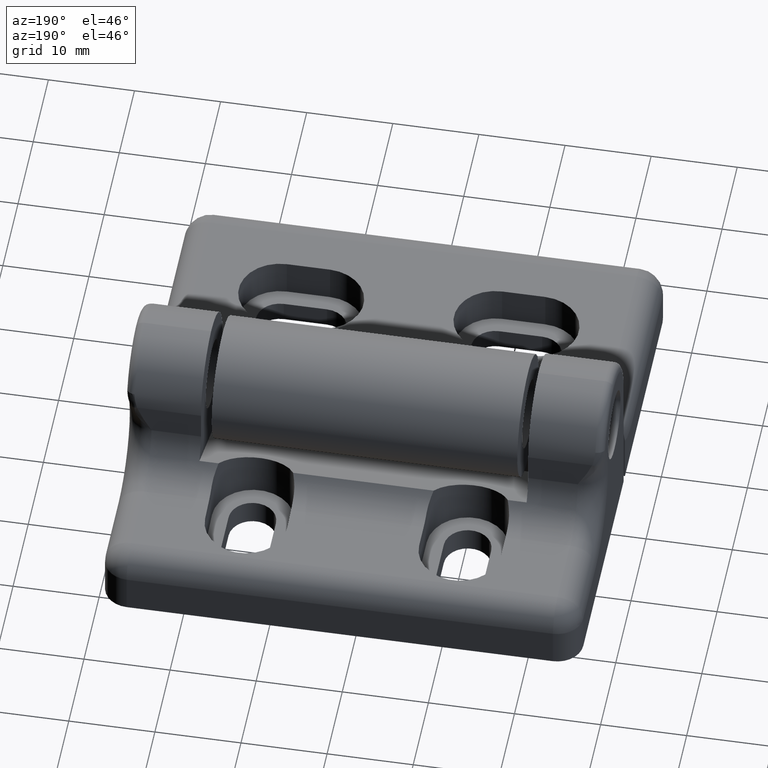
[diagram: clean part render]
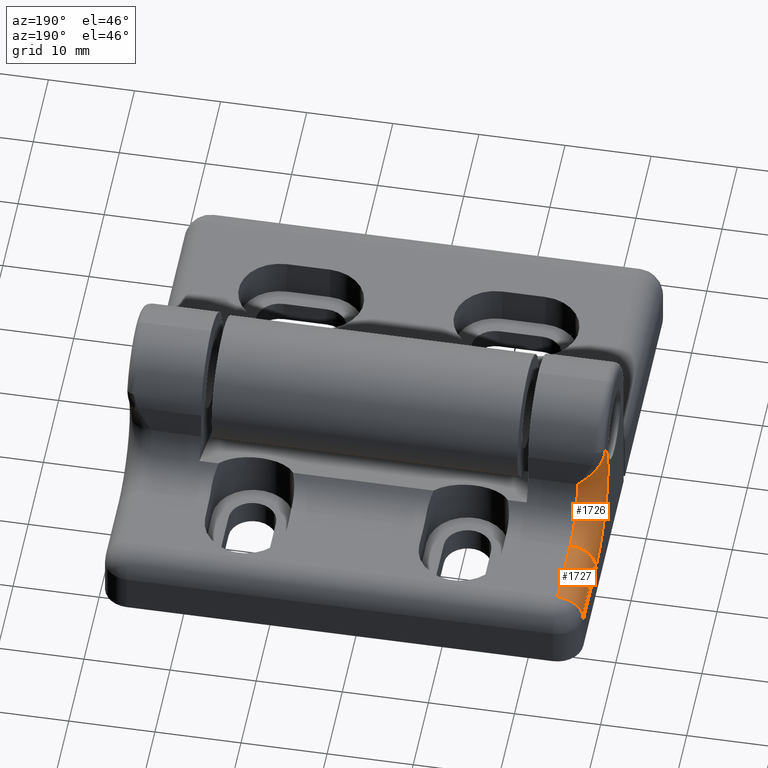
[diagram: same view with one multi-face feature highlighted, each face labeled with its STEP entity id]
A machine part, auxiliary view. The highlighted faces form ONE feature: a constant-radius fillet chain: 2 tangent blend faces with common blend radius 3 mm. The faces share edges in the B-rep.
Their STEP definitions:
[1] entity #1727 (Cylinder):
#154=FACE_OUTER_BOUND('',#261,.T.);
#261=EDGE_LOOP('',(#1304,#1305,#1306,#1307));
#386=LINE('',#2758,#528);
#405=LINE('',#2816,#547);
#528=VECTOR('',#2144,8.29999999999999);
#547=VECTOR('',#2199,8.29999999999999);
#673=CIRCLE('',#1876,3.);
#674=CIRCLE('',#1878,3.);
#759=VERTEX_POINT('',#2650);
#788=VERTEX_POINT('',#2756);
#808=VERTEX_POINT('',#2813);
#809=VERTEX_POINT('',#2815);
#967=EDGE_CURVE('',#788,#759,#386,.T.);
#998=EDGE_CURVE('',#808,#809,#405,.T.);
#1011=EDGE_CURVE('',#808,#759,#673,.T.);
#1012=EDGE_CURVE('',#809,#788,#674,.T.);
#1304=ORIENTED_EDGE('',*,*,#1011,.T.);
#1305=ORIENTED_EDGE('',*,*,#967,.F.);
#1306=ORIENTED_EDGE('',*,*,#1012,.F.);
#1307=ORIENTED_EDGE('',*,*,#998,.F.);
#1673=CYLINDRICAL_SURFACE('',#1877,3.);
#1727=ADVANCED_FACE('',(#154),#1673,.T.);
#1876=AXIS2_PLACEMENT_3D('',#2861,#2219,#2220);
#1877=AXIS2_PLACEMENT_3D('',#2862,#2221,#2222);
#1878=AXIS2_PLACEMENT_3D('',#2863,#2223,#2224);
#2144=DIRECTION('',(0.,-1.,0.));
#2199=DIRECTION('',(0.,1.,0.));
#2219=DIRECTION('center_axis',(0.,1.,0.));
#2220=DIRECTION('ref_axis',(0.,0.,1.));
#2221=DIRECTION('center_axis',(0.,1.,0.));
#2222=DIRECTION('ref_axis',(0.707106781186548,0.,-0.707106781186547));
#2223=DIRECTION('center_axis',(0.,1.,0.));
#2224=DIRECTION('ref_axis',(0.,0.,1.));
#2650=CARTESIAN_POINT('',(-14.75,34.1677756572818,7.99777293092992));
#2756=CARTESIAN_POINT('',(-14.75,42.4677756572818,7.99777293092992));
#2758=CARTESIAN_POINT('',(-14.75,42.4677756572818,7.99777293092992));
#2813=CARTESIAN_POINT('',(-17.75,34.1677756572818,4.99777293092991));
#2815=CARTESIAN_POINT('',(-17.75,42.4677756572818,4.99777293092992));
#2816=CARTESIAN_POINT('',(-17.75,34.1677756572818,4.99777293092992));
#2861=CARTESIAN_POINT('Origin',(-14.75,34.1677756572818,4.99777293092992));
#2862=CARTESIAN_POINT('Origin',(-14.75,34.1677756472818,4.99777293092992));
#2863=CARTESIAN_POINT('Origin',(-14.75,42.4677756572818,4.99777293092992));
[2] entity #1726 (Torus):
#35=TOROIDAL_SURFACE('',#1875,8.00000000000001,3.00000000000001);
#99=B_SPLINE_CURVE_WITH_KNOTS('',3,(#2838,#2839,#2840,#2841,#2842,#2843,
#2844),.UNSPECIFIED.,.F.,.F.,(4,3,4),(3.469447E-18,0.001039095501929,0.002078191003858),
 .UNSPECIFIED.);
#100=B_SPLINE_CURVE_WITH_KNOTS('',3,(#2845,#2846,#2847,#2848,#2849,#2850,
#2851,#2852,#2853,#2854,#2855,#2856,#2857,#2858,#2859,#2860),
 .UNSPECIFIED.,.F.,.F.,(4,3,3,3,3,4),(0.,0.002034604115494,0.0020831752241819,
0.003051906173241,0.003560557202115,0.004069208230989),.UNSPECIFIED.);
#153=FACE_OUTER_BOUND('',#260,.T.);
#260=EDGE_LOOP('',(#1299,#1300,#1301,#1302,#1303));
#647=CIRCLE('',#1827,5.);
#669=CIRCLE('',#1869,8.);
#673=CIRCLE('',#1876,3.);
#759=VERTEX_POINT('',#2650);
#760=VERTEX_POINT('',#2652);
#807=VERTEX_POINT('',#2811);
#808=VERTEX_POINT('',#2813);
#817=VERTEX_POINT('',#2837);
#923=EDGE_CURVE('',#759,#760,#647,.T.);
#997=EDGE_CURVE('',#807,#808,#669,.T.);
#1009=EDGE_CURVE('',#807,#817,#99,.T.);
#1010=EDGE_CURVE('',#817,#760,#100,.T.);
#1011=EDGE_CURVE('',#808,#759,#673,.T.);
#1299=ORIENTED_EDGE('',*,*,#1009,.T.);
#1300=ORIENTED_EDGE('',*,*,#1010,.T.);
#1301=ORIENTED_EDGE('',*,*,#923,.F.);
#1302=ORIENTED_EDGE('',*,*,#1011,.F.);
#1303=ORIENTED_EDGE('',*,*,#997,.F.);
#1726=ADVANCED_FACE('',(#153),#35,.T.);
#1827=AXIS2_PLACEMENT_3D('',#2653,#2067,#2068);
#1869=AXIS2_PLACEMENT_3D('',#2814,#2197,#2198);
#1875=AXIS2_PLACEMENT_3D('',#2836,#2217,#2218);
#1876=AXIS2_PLACEMENT_3D('',#2861,#2219,#2220);
#2067=DIRECTION('center_axis',(-1.,0.,0.));
#2068=DIRECTION('ref_axis',(0.,0.,-1.));
#2197=DIRECTION('center_axis',(1.,0.,0.));
#2198=DIRECTION('ref_axis',(0.,0.,-1.));
#2217=DIRECTION('center_axis',(-1.,-1.83622934512806E-15,-1.95656836681372E-15));
#2218=DIRECTION('ref_axis',(-1.93784382480027E-15,0.,1.));
#2219=DIRECTION('center_axis',(0.,1.,0.));
#2220=DIRECTION('ref_axis',(0.,0.,1.));
#2650=CARTESIAN_POINT('',(-14.75,34.1677756572818,7.99777293092992));
#2652=CARTESIAN_POINT('',(-14.75,29.1677756572818,12.9977729309299));
#2653=CARTESIAN_POINT('Origin',(-14.75,34.1677756572818,12.9977729309299));
#2811=CARTESIAN_POINT('',(-17.75,27.9485298067387,18.0297686632912));
#2813=CARTESIAN_POINT('',(-17.75,34.1677756572818,4.99777293092991));
#2814=CARTESIAN_POINT('Origin',(-17.75,34.1677756572818,12.9977729309299));
#2836=CARTESIAN_POINT('Origin',(-14.75,34.1677756572818,12.9977729309299));
#2837=CARTESIAN_POINT('',(-17.2574102157531,28.6450576876424,16.1376926577219));
#2838=CARTESIAN_POINT('Ctrl Pts',(-17.75,27.9485298067387,18.0297686632912));
#2839=CARTESIAN_POINT('Ctrl Pts',(-17.75,28.100555396383,17.7109878648145));
#2840=CARTESIAN_POINT('Ctrl Pts',(-17.699993158793,28.2357782801068,17.3956206720757));
#2841=CARTESIAN_POINT('Ctrl Pts',(-17.6132807964024,28.3534668454362,17.0806752251271));
#2842=CARTESIAN_POINT('Ctrl Pts',(-17.5265684340119,28.4711554107656,16.7657297781784));
#2843=CARTESIAN_POINT('Ctrl Pts',(-17.4007859970416,28.5717478754652,16.4503603323591));
#2844=CARTESIAN_POINT('Ctrl Pts',(-17.2574102157531,28.6450576876424,16.1376926577219));
#2845=CARTESIAN_POINT('Ctrl Pts',(-17.2574102157531,28.6450576876424,16.1376926577219));
#2846=CARTESIAN_POINT('Ctrl Pts',(-16.9779832985936,28.7879321365369,15.5283305882565));
#2847=CARTESIAN_POINT('Ctrl Pts',(-16.6033749756797,28.9195447077556,14.9779797249843));
#2848=CARTESIAN_POINT('Ctrl Pts',(-16.1668943407206,29.0157090695139,14.4604898533369));
#2849=CARTESIAN_POINT('Ctrl Pts',(-16.1564744520556,29.018004754277,14.4481360707955));
#2850=CARTESIAN_POINT('Ctrl Pts',(-16.1460259917392,29.0202785022869,14.4358077105544));
#2851=CARTESIAN_POINT('Ctrl Pts',(-16.1355497197857,29.0225299515396,14.4235043227794));
#2852=CARTESIAN_POINT('Ctrl Pts',(-15.9266047492828,29.0674341884467,14.1781182725556));
#2853=CARTESIAN_POINT('Ctrl Pts',(-15.706229714608,29.1031044324693,13.9427956256958));
#2854=CARTESIAN_POINT('Ctrl Pts',(-15.479456290726,29.1278457275446,13.7125362246009));
#2855=CARTESIAN_POINT('Ctrl Pts',(-15.360384493246,29.1408366257996,13.591634046975));
#2856=CARTESIAN_POINT('Ctrl Pts',(-15.2395368681297,29.1508219066273,13.4721290864257));
#2857=CARTESIAN_POINT('Ctrl Pts',(-15.1176876284809,29.1575568743289,13.3532498540417));
#2858=CARTESIAN_POINT('Ctrl Pts',(-14.9958383888321,29.1642918420305,13.2343706216578));
#2859=CARTESIAN_POINT('Ctrl Pts',(-14.872173836494,29.1677756572819,13.1153351747047));
#2860=CARTESIAN_POINT('Ctrl Pts',(-14.75,29.1677756572819,12.9977729309299));
#2861=CARTESIAN_POINT('Origin',(-14.75,34.1677756572818,4.99777293092992));